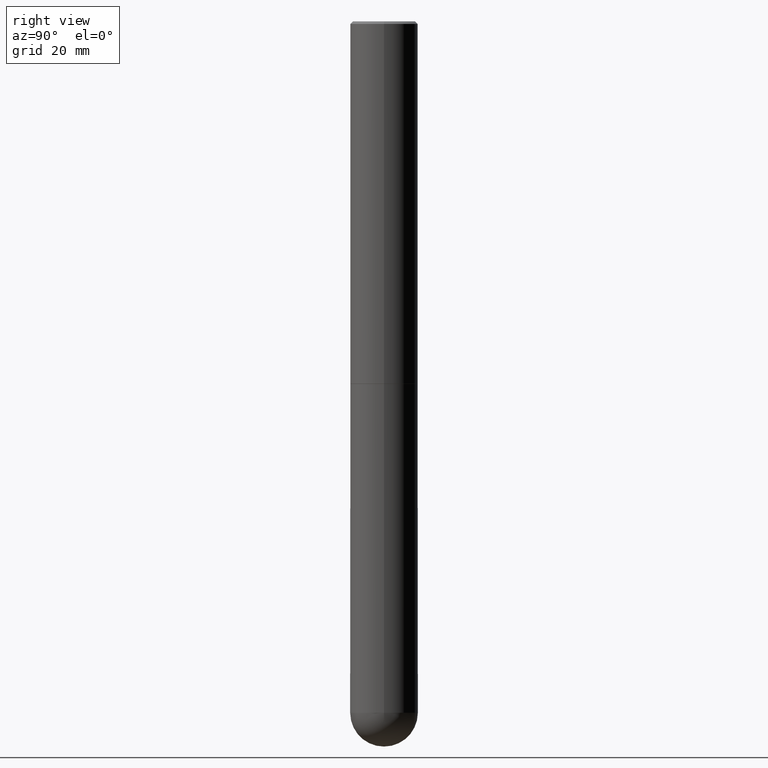
[diagram: clean part render]
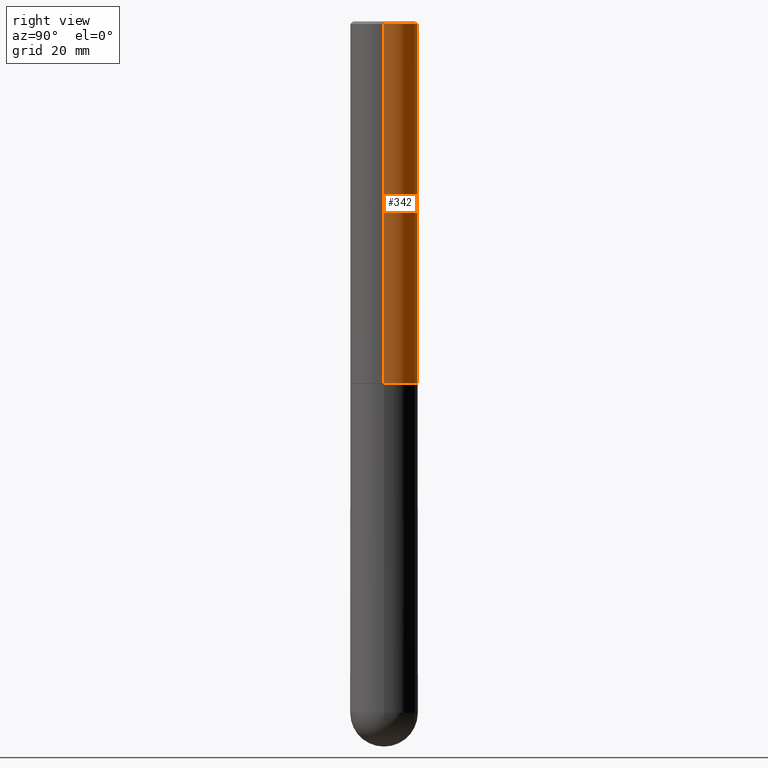
[diagram: same view with one face highlighted and labeled with its STEP entity id]
A machine part, right view. The second image highlights one B-rep face of the part: STEP entity #342.
In plain terms, the highlighted cylindrical surface (edge-blend (fillet) strip) has radius 7.0002 mm, axis along (-0, 0, 1).
Its self-contained STEP definition (entity closure, byte-faithful):
#1 = EDGE_LOOP ( 'NONE', ( #271, #82, #54, #388 ) ) ;
#6 = VERTEX_POINT ( 'NONE', #85 ) ;
#8 = FACE_OUTER_BOUND ( 'NONE', #1, .T. ) ;
#31 = DIRECTION ( 'NONE',  ( 1.000000000000000000, -6.982962677686267499E-15, 0.000000000000000000 ) ) ;
#35 = AXIS2_PLACEMENT_3D ( 'NONE', #389, #51, #109 ) ;
#37 = EDGE_CURVE ( 'NONE', #349, #257, #380, .T. ) ;
#51 = DIRECTION ( 'NONE',  ( -2.445468806185136597E-29, 3.491481338843145583E-15, 1.000000000000000000 ) ) ;
#54 = ORIENTED_EDGE ( 'NONE', *, *, #37, .F. ) ;
#82 = ORIENTED_EDGE ( 'NONE', *, *, #387, .T. ) ;
#85 = CARTESIAN_POINT ( 'NONE',  ( 0.2756000000000004557, -1.223030998183365327E-14, -2.951700000000000212 ) ) ;
#87 = LINE ( 'NONE', #243, #188 ) ;
#92 = CARTESIAN_POINT ( 'NONE',  ( 7.218290275216666916E-29, -1.030580546786331359E-14, -2.951700000000000212 ) ) ;
#109 = DIRECTION ( 'NONE',  ( 1.000000000000000000, -6.982962677686267499E-15, 4.876176775795935793E-29 ) ) ;
#117 = EDGE_CURVE ( 'NONE', #6, #362, #169, .T. ) ;
#125 = LINE ( 'NONE', #248, #363 ) ;
#134 = AXIS2_PLACEMENT_3D ( 'NONE', #223, #411, #31 ) ;
#169 = CIRCLE ( 'NONE', #395, 0.2756000000000004557 ) ;
#171 = CYLINDRICAL_SURFACE ( 'NONE', #35, 0.2756000000000002337 ) ;
#172 = EDGE_CURVE ( 'NONE', #6, #349, #125, .T. ) ;
#188 = VECTOR ( 'NONE', #219, 39.37007874015748143 ) ;
#216 = DIRECTION ( 'NONE',  ( -2.445468806185136597E-29, 3.491481338843145583E-15, 1.000000000000000000 ) ) ;
#219 = DIRECTION ( 'NONE',  ( -2.445468806185136877E-29, 3.491481338843145188E-15, 1.000000000000000000 ) ) ;
#223 = CARTESIAN_POINT ( 'NONE',  ( 4.890937612370288923E-31, -6.982962677686312563E-17, -0.02000000000000006287 ) ) ;
#243 = CARTESIAN_POINT ( 'NONE',  ( -0.2756000000000002337, 1.958255779754837773E-15, -1.355658510874253128E-29 ) ) ;
#248 = CARTESIAN_POINT ( 'NONE',  ( 0.2756000000000002337, -1.924504513970336926E-15, 1.343874319409361109E-29 ) ) ;
#257 = VERTEX_POINT ( 'NONE', #326 ) ;
#265 = CARTESIAN_POINT ( 'NONE',  ( 0.2756000000000000116, -1.960582874962697406E-15, -0.02000000000000006287 ) ) ;
#271 = ORIENTED_EDGE ( 'NONE', *, *, #117, .T. ) ;
#278 = DIRECTION ( 'NONE',  ( -2.445468806185136877E-29, 3.491481338843145188E-15, 1.000000000000000000 ) ) ;
#298 = CARTESIAN_POINT ( 'NONE',  ( -0.2756000000000004002, -3.229561767565246331E-15, -2.951700000000000212 ) ) ;
#326 = CARTESIAN_POINT ( 'NONE',  ( -0.2756000000000000116, 1.854674887193472050E-15, -0.02000000000000006287 ) ) ;
#341 = DIRECTION ( 'NONE',  ( 1.000000000000000000, -6.982962677686269077E-15, 0.000000000000000000 ) ) ;
#342 = ADVANCED_FACE ( 'NONE', ( #8 ), #171, .T. ) ;
#349 = VERTEX_POINT ( 'NONE', #265 ) ;
#362 = VERTEX_POINT ( 'NONE', #298 ) ;
#363 = VECTOR ( 'NONE', #278, 39.37007874015748143 ) ;
#380 = CIRCLE ( 'NONE', #134, 0.2756000000000000116 ) ;
#387 = EDGE_CURVE ( 'NONE', #362, #257, #87, .T. ) ;
#388 = ORIENTED_EDGE ( 'NONE', *, *, #172, .F. ) ;
#389 = CARTESIAN_POINT ( 'NONE',  ( 0.000000000000000000, 0.000000000000000000, 0.000000000000000000 ) ) ;
#395 = AXIS2_PLACEMENT_3D ( 'NONE', #92, #216, #341 ) ;
#411 = DIRECTION ( 'NONE',  ( -2.445468806185136597E-29, 3.491481338843145583E-15, 1.000000000000000000 ) ) ;